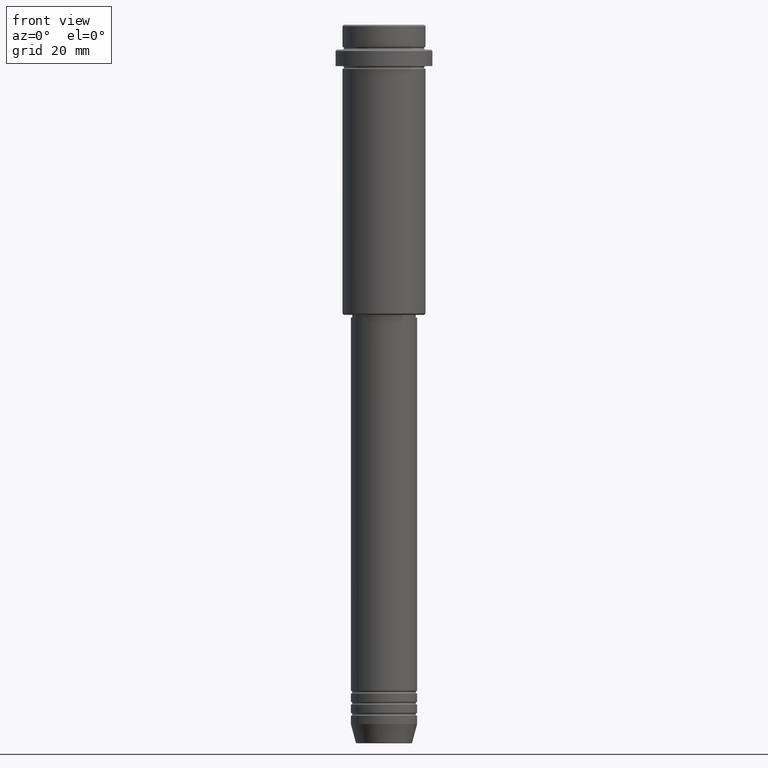
[diagram: clean part render]
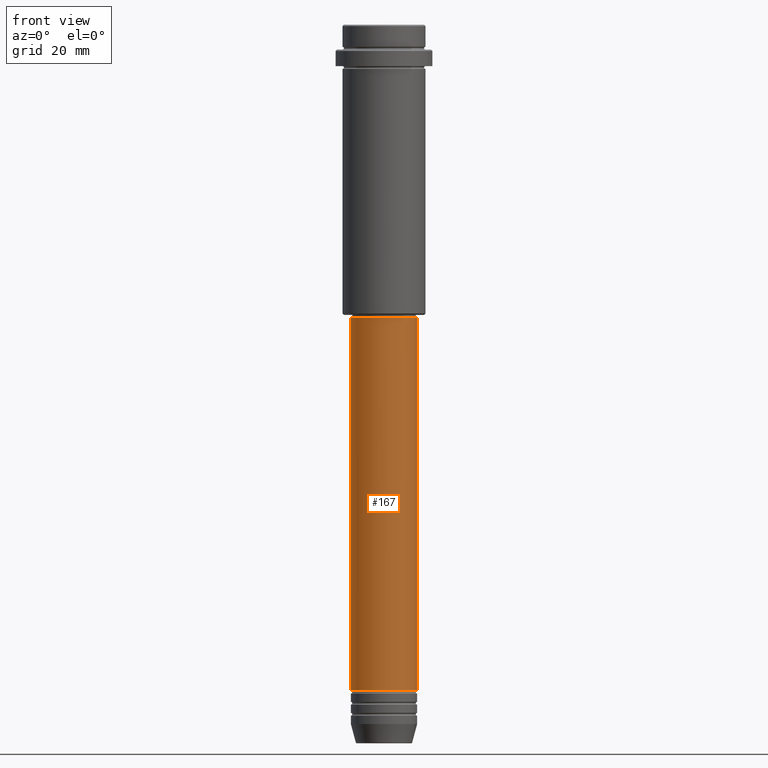
[diagram: same view with one face highlighted and labeled with its STEP entity id]
A machine part, front view. The second image highlights one B-rep face of the part: STEP entity #167.
In plain terms, the highlighted cylindrical surface (edge-blend (fillet) strip) has radius 12 mm, axis along (-0, -0, 1).
Its self-contained STEP definition (entity closure, byte-faithful):
#8 = DIRECTION ( 'NONE',  ( 1.000000000000000000, 0.000000000000000000, 0.000000000000000000 ) ) ;
#36 = CARTESIAN_POINT ( 'NONE',  ( 12.00000000000000000, 0.000000000000000000, -240.9999999999999147 ) ) ;
#53 = EDGE_LOOP ( 'NONE', ( #628, #847, #897, #1125 ) ) ;
#74 = EDGE_CURVE ( 'NONE', #170, #969, #292, .T. ) ;
#162 = VERTEX_POINT ( 'NONE', #559 ) ;
#167 = ADVANCED_FACE ( 'NONE', ( #674 ), #577, .T. ) ;
#170 = VERTEX_POINT ( 'NONE', #36 ) ;
#176 = EDGE_CURVE ( 'NONE', #162, #170, #1410, .T. ) ;
#233 = CARTESIAN_POINT ( 'NONE',  ( -12.00000000000000000, 1.469576158976823947E-15, 0.000000000000000000 ) ) ;
#242 = AXIS2_PLACEMENT_3D ( 'NONE', #568, #994, #445 ) ;
#245 = CARTESIAN_POINT ( 'NONE',  ( 0.000000000000000000, 0.000000000000000000, -106.0000000000000142 ) ) ;
#274 = DIRECTION ( 'NONE',  ( -0.000000000000000000, -0.000000000000000000, 1.000000000000000000 ) ) ;
#292 = LINE ( 'NONE', #1282, #1318 ) ;
#445 = DIRECTION ( 'NONE',  ( 1.000000000000000000, 0.000000000000000000, 0.000000000000000000 ) ) ;
#559 = CARTESIAN_POINT ( 'NONE',  ( -12.00000000000000000, 1.469576158976823947E-15, -240.9999999999999147 ) ) ;
#568 = CARTESIAN_POINT ( 'NONE',  ( 0.000000000000000000, 0.000000000000000000, 0.000000000000000000 ) ) ;
#577 = CYLINDRICAL_SURFACE ( 'NONE', #242, 12.00000000000000000 ) ;
#601 = EDGE_CURVE ( 'NONE', #162, #755, #900, .T. ) ;
#628 = ORIENTED_EDGE ( 'NONE', *, *, #601, .F. ) ;
#636 = AXIS2_PLACEMENT_3D ( 'NONE', #245, #274, #1242 ) ;
#658 = AXIS2_PLACEMENT_3D ( 'NONE', #681, #1311, #8 ) ;
#674 = FACE_OUTER_BOUND ( 'NONE', #53, .T. ) ;
#681 = CARTESIAN_POINT ( 'NONE',  ( 0.000000000000000000, 0.000000000000000000, -240.9999999999999147 ) ) ;
#755 = VERTEX_POINT ( 'NONE', #1138 ) ;
#847 = ORIENTED_EDGE ( 'NONE', *, *, #176, .T. ) ;
#897 = ORIENTED_EDGE ( 'NONE', *, *, #74, .T. ) ;
#900 = LINE ( 'NONE', #233, #1366 ) ;
#969 = VERTEX_POINT ( 'NONE', #1270 ) ;
#994 = DIRECTION ( 'NONE',  ( -0.000000000000000000, -0.000000000000000000, 1.000000000000000000 ) ) ;
#1094 = DIRECTION ( 'NONE',  ( -0.000000000000000000, -0.000000000000000000, 1.000000000000000000 ) ) ;
#1125 = ORIENTED_EDGE ( 'NONE', *, *, #1240, .F. ) ;
#1138 = CARTESIAN_POINT ( 'NONE',  ( -11.99999999999999822, 1.469576158976823750E-15, -106.0000000000000142 ) ) ;
#1240 = EDGE_CURVE ( 'NONE', #755, #969, #1277, .T. ) ;
#1242 = DIRECTION ( 'NONE',  ( 1.000000000000000000, 0.000000000000000000, 0.000000000000000000 ) ) ;
#1270 = CARTESIAN_POINT ( 'NONE',  ( 11.99999999999999822, 0.000000000000000000, -106.0000000000000142 ) ) ;
#1277 = CIRCLE ( 'NONE', #636, 11.99999999999999822 ) ;
#1282 = CARTESIAN_POINT ( 'NONE',  ( 12.00000000000000000, 0.000000000000000000, 0.000000000000000000 ) ) ;
#1285 = DIRECTION ( 'NONE',  ( -0.000000000000000000, -0.000000000000000000, 1.000000000000000000 ) ) ;
#1311 = DIRECTION ( 'NONE',  ( -0.000000000000000000, -0.000000000000000000, 1.000000000000000000 ) ) ;
#1318 = VECTOR ( 'NONE', #1285, 1000.000000000000000 ) ;
#1366 = VECTOR ( 'NONE', #1094, 1000.000000000000000 ) ;
#1410 = CIRCLE ( 'NONE', #658, 12.00000000000000000 ) ;